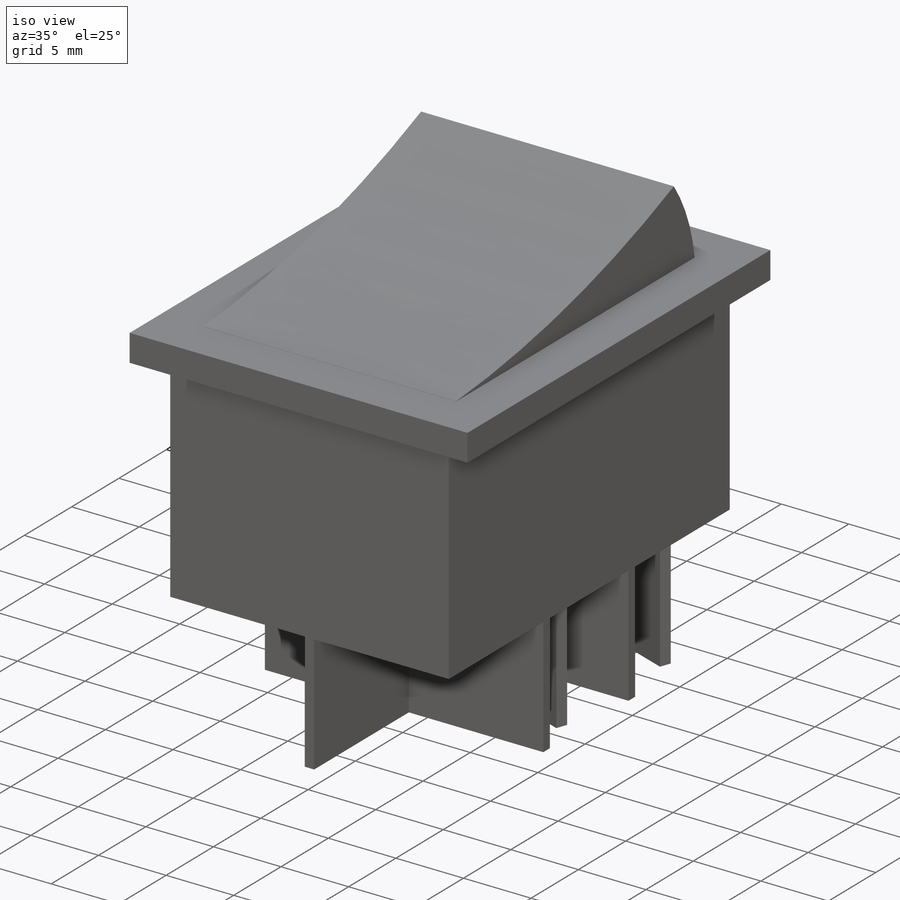
[diagram: iso view]
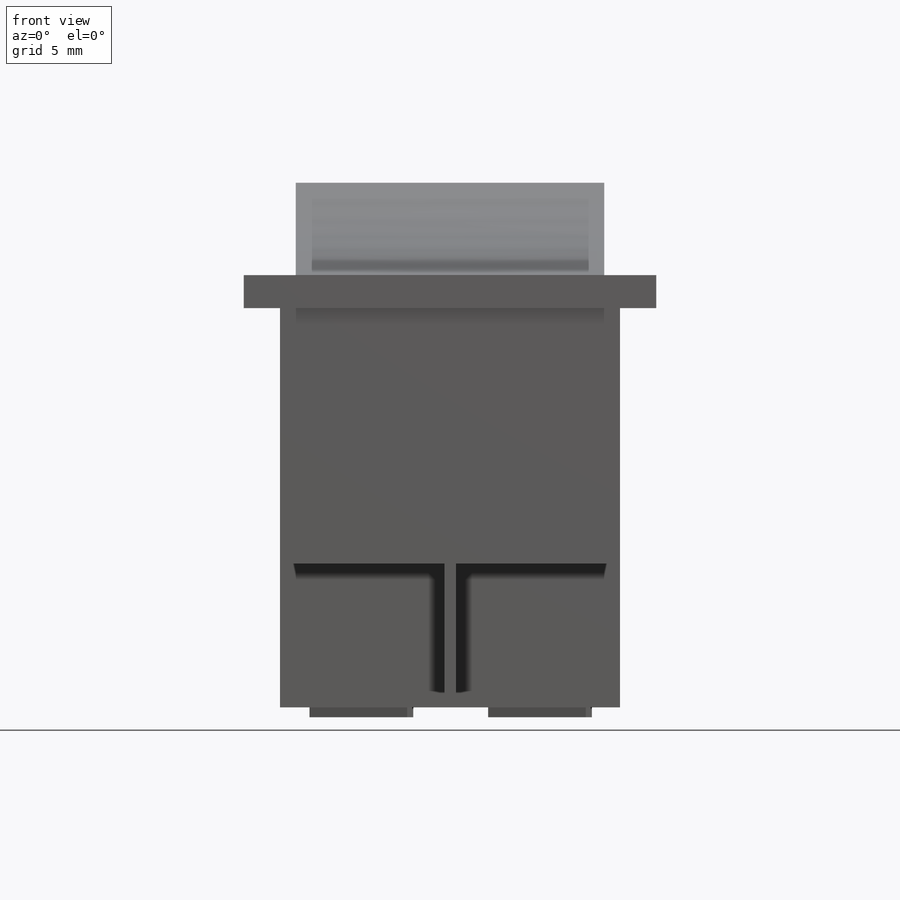
[diagram: front view]
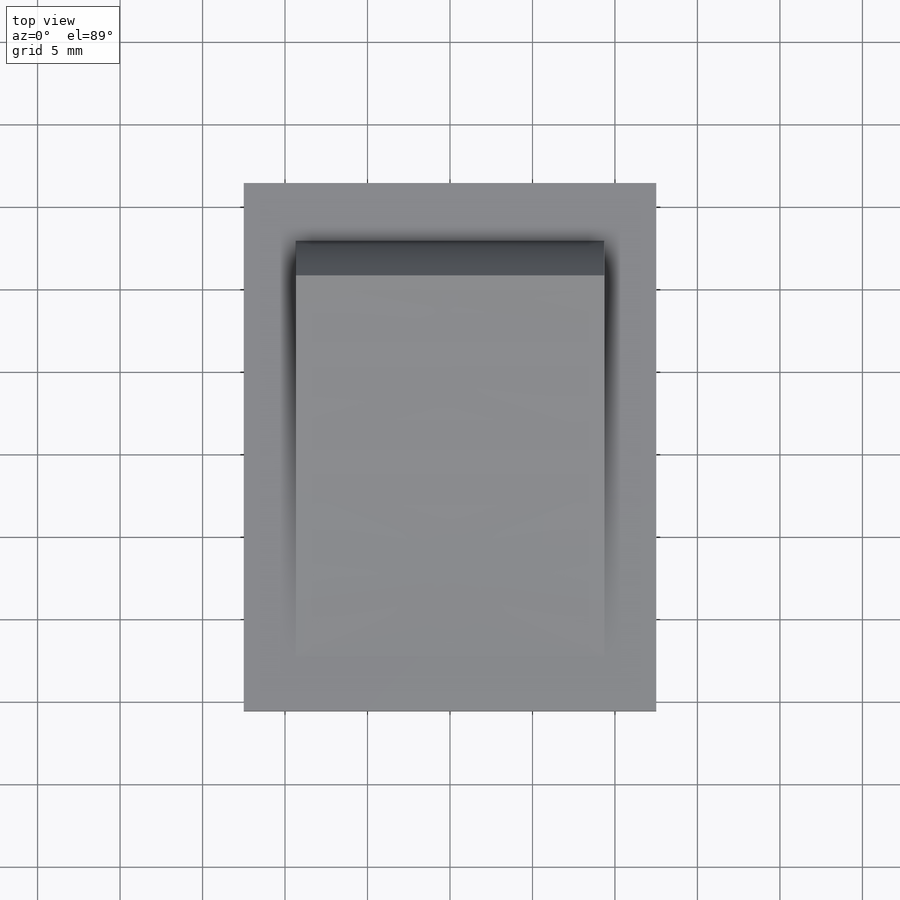
[diagram: top view]
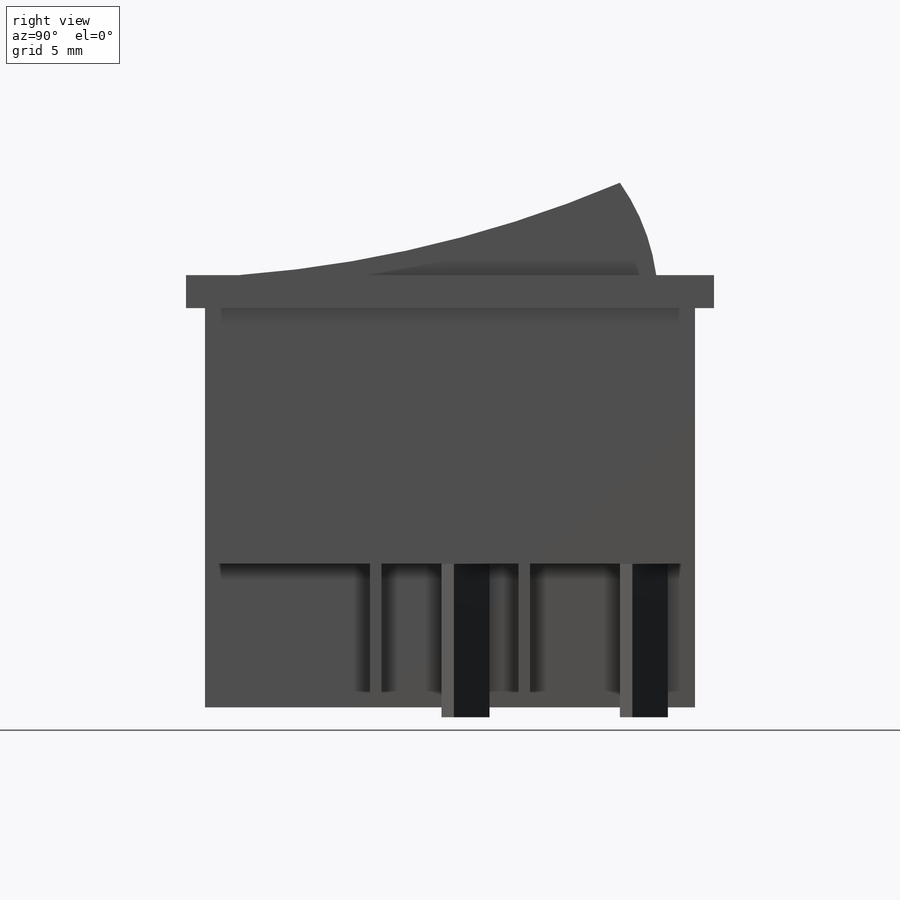
[diagram: right view]
SOLIDWORKS PART (.sldprt)
format: sldprt  version: not decoded by parser v0  size: 302,592 bytes
history: native  units: mm
features: sketch x7, extrude x4, plane x3, mirror x2, material x1, cut_extrude x1 (+12 scaffold rows collapsed)
feature tree (30):
  scaffold x12  (default folders/planes/origin — collapsed)
  material  "Material <not specified>"
  plane  "FRONT"
  plane  "TOP"
  plane  "RIGHT"
  sketch  "Sketch1"  dims[D1=25.0mm D2=20.6mm D3=2.0mm D4=26.2mm]
  extrude  "Extrude1"  Depth=29.7mm
  sketch  "Sketch2"
  extrude  "Extrude2"  Depth=1.15mm
  mirror  "Mirror1"
  sketch  "Sketch4"  dims[D6=73.0mm D1=3.3mm D2=3.5mm D3=0.01mm D4=5.6mm D5=5.7mm]
  extrude  "Extrude4"  Depth=18.7mm
  sketch  "Sketch5"  dims[D1=0.7mm D2=0.7mm D3=8.3mm]
  cut_extrude  "Cut-Extrude1"  Depth=8.7mm
  sketch  "Sketch6"  dims[c1.D4=5.8mm c1.D5=~2.334701mm c1.D1=1.0mm c1.D2=6.0mm c1.D3=1.1mm c2.D5=1.0mm c2.D6=4.5mm]
  sketch  "Sketch7"  dims[D1=0.0mm]
  mirror  "Split Line10"
  sketch  "Sketch9"  dims[c1.D1=0.8mm c1.D2=6.3mm c1.D3=29.7mm c2.D3=70.0deg]
  extrude  "Extrude5"  Depth=9.3mm
decode coverage: 11 of 14 modeling features carry decoded parameters
note: ~ marks probable driven/reference dimensions
note: suppression state not decoded; provenance and decode notes live in map.json
